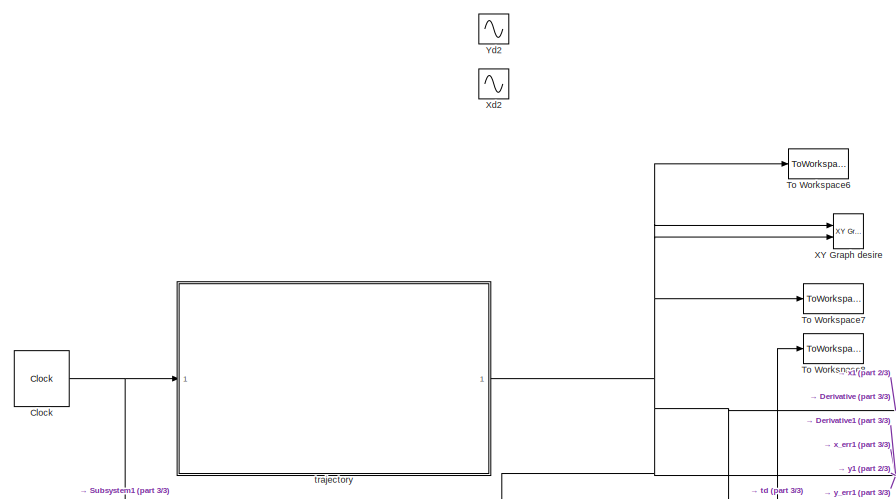
[diagram: root canvas - part 1/3, top left region]
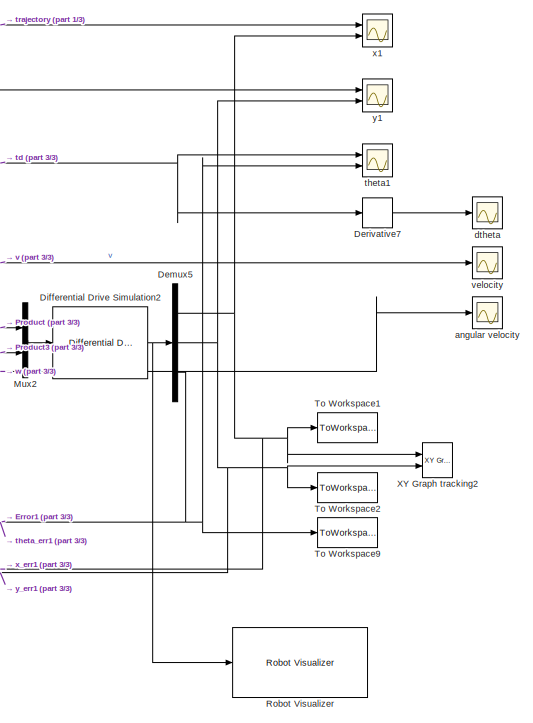
[diagram: root canvas - part 2/3, middle right region]
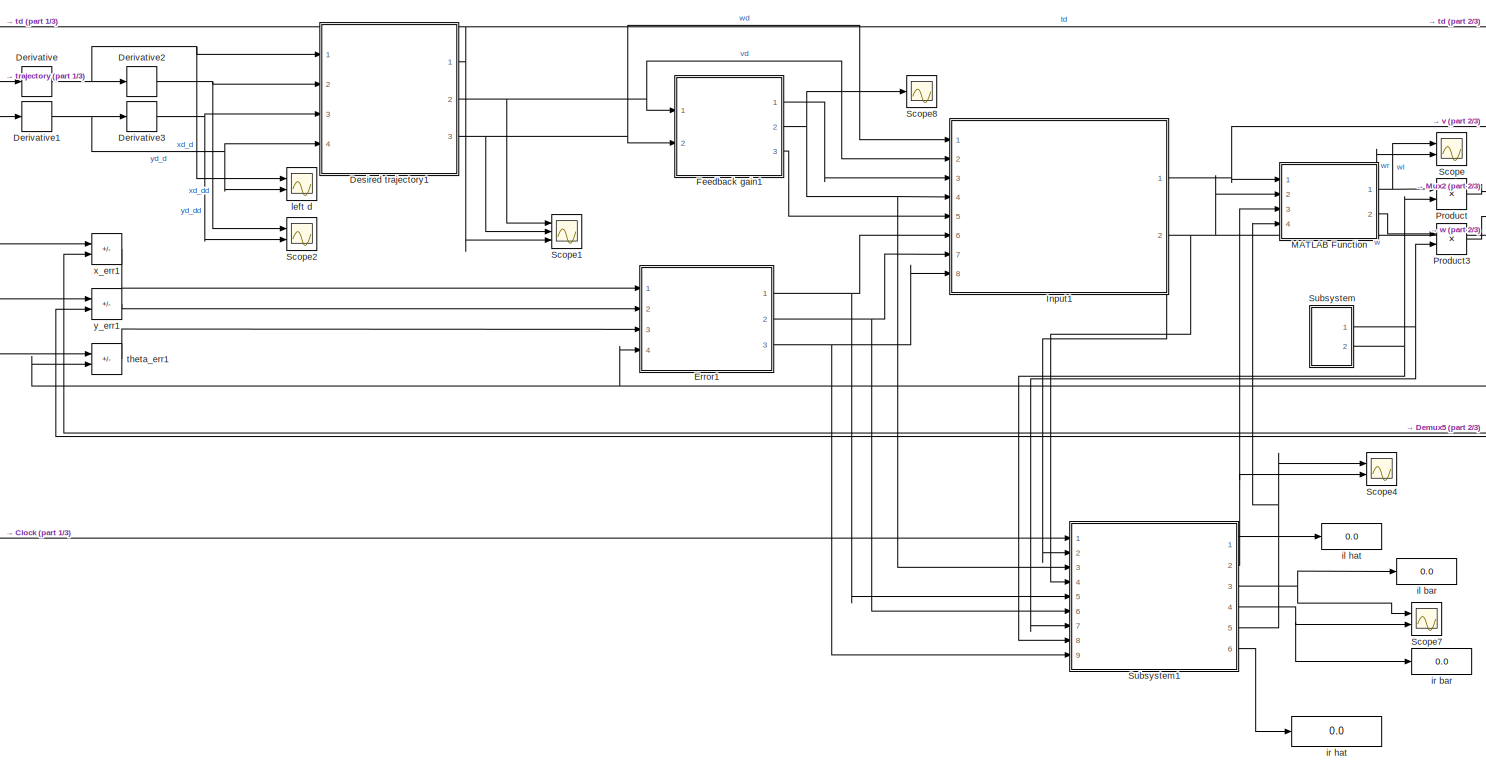
[diagram: root canvas - part 3/3, bottom center region]
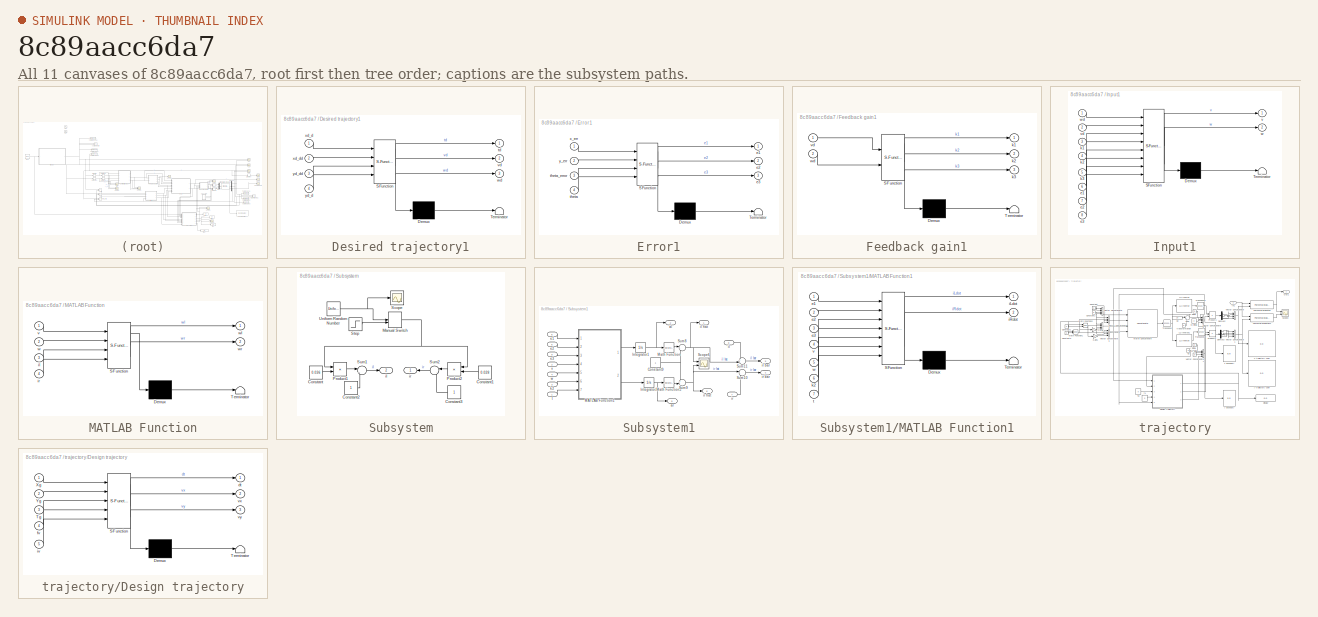
[diagram: thumbnail index - all 11 canvases of the model, root first then tree order]
MODEL slx_8c89aacc6da7
KIND model
CONFIG AbsTol = auto
CONFIG EnableMultiTasking = off
CONFIG FixedStep = 0.01
CONFIG MaxStep = auto
CONFIG MinStep = auto
CONFIG RelTol = 1e-3
CONFIG SampleTimeConstraint = Unconstrained
CONFIG SolverName = ode4
CONFIG StartTime = 0.0
CONFIG StopTime = 50
BLOCK [Clock] Clock
BLOCK [Demux] Demux5
  Outputs = 3
  Ports = [1, 3]
BLOCK [Derivative] Derivative
  CoefficientInTFapproximation = 0
BLOCK [Derivative] Derivative1
  CoefficientInTFapproximation = 0
BLOCK [Derivative] Derivative2
  CoefficientInTFapproximation = 0
BLOCK [Derivative] Derivative3
  CoefficientInTFapproximation = 0
BLOCK [Derivative] Derivative7
  CoefficientInTFapproximation = 0
BLOCK [SubSystem] Desired trajectory1
  ErrorFcn = Stateflow.Translate.translate
  PermitHierarchicalResolution = ExplicitOnly
  Ports = [4, 3]
  RequestExecContextInheritance = off
  SFBlockType = MATLAB Function
  TreatAsAtomicUnit = on
BLOCK [Demux] Desired trajectory1/ Demux 
  Outputs = 1
  Ports = [1, 1]
BLOCK [S-Function] Desired trajectory1/ SFunction 
  EnableBusSupport = on
  FunctionName = sf_sfun
  PortCounts = [4 4]
  Ports = [4, 4]
  SFcnIsStateOwnerBlock = off
  SFunctionDeploymentMode = off
  Tag = Stateflow S-Function 5
BLOCK [Terminator] Desired trajectory1/ Terminator 
BLOCK [Outport] Desired trajectory1/td
  VectorParamsAs1DForOutWhenUnconnected = off
BLOCK [Outport] Desired trajectory1/vd
  Port = 2
  VectorParamsAs1DForOutWhenUnconnected = off
BLOCK [Outport] Desired trajectory1/wd
  Port = 3
  VectorParamsAs1DForOutWhenUnconnected = off
BLOCK [Inport] Desired trajectory1/xd_d
BLOCK [Inport] Desired trajectory1/xd_dd
  Port = 2
BLOCK [Inport] Desired trajectory1/yd_d
  Port = 4
BLOCK [Inport] Desired trajectory1/yd_dd
  Port = 3
BLOCK [Reference] Differential Drive Simulation2  REF=mobileRoboticsLib/Kinematic Models/Differential Drive/Differential Drive Simulation
  Ports = [1, 1]
  SourceBlock = mobileRoboticsLib/Kinematic Models/Differential Drive/Differential Drive Simulation
  SourceProductName = Mobile Robotics Simulation Toolbox
  SourceType = Differential Drive Simulation
BLOCK [SubSystem] Error1
  ErrorFcn = Stateflow.Translate.translate
  PermitHierarchicalResolution = ExplicitOnly
  Ports = [4, 3]
  RequestExecContextInheritance = off
  SFBlockType = MATLAB Function
  TreatAsAtomicUnit = on
BLOCK [Demux] Error1/ Demux 
  Outputs = 1
  Ports = [1, 1]
BLOCK [S-Function] Error1/ SFunction 
  EnableBusSupport = on
  FunctionName = sf_sfun
  PortCounts = [4 4]
  Ports = [4, 4]
  SFcnIsStateOwnerBlock = off
  SFunctionDeploymentMode = off
  Tag = Stateflow S-Function 6
BLOCK [Terminator] Error1/ Terminator 
BLOCK [Outport] Error1/e1
  VectorParamsAs1DForOutWhenUnconnected = off
BLOCK [Outport] Error1/e2
  Port = 2
  VectorParamsAs1DForOutWhenUnconnected = off
BLOCK [Outport] Error1/e3
  Port = 3
  VectorParamsAs1DForOutWhenUnconnected = off
BLOCK [Inport] Error1/theta
  Port = 4
BLOCK [Inport] Error1/theta_error
  Port = 3
BLOCK [Inport] Error1/x_err
BLOCK [Inport] Error1/y_err
  Port = 2
BLOCK [SubSystem] Feedback gain1
  ErrorFcn = Stateflow.Translate.translate
  PermitHierarchicalResolution = ExplicitOnly
  Ports = [2, 3]
  RequestExecContextInheritance = off
  SFBlockType = MATLAB Function
  TreatAsAtomicUnit = on
BLOCK [Demux] Feedback gain1/ Demux 
  Outputs = 1
  Ports = [1, 1]
BLOCK [S-Function] Feedback gain1/ SFunction 
  EnableBusSupport = on
  FunctionName = sf_sfun
  PortCounts = [2 4]
  Ports = [2, 4]
  SFcnIsStateOwnerBlock = off
  SFunctionDeploymentMode = off
  Tag = Stateflow S-Function 7
BLOCK [Terminator] Feedback gain1/ Terminator 
BLOCK [Outport] Feedback gain1/k1
  VectorParamsAs1DForOutWhenUnconnected = off
BLOCK [Outport] Feedback gain1/k2
  Port = 2
  VectorParamsAs1DForOutWhenUnconnected = off
BLOCK [Outport] Feedback gain1/k3
  Port = 3
  VectorParamsAs1DForOutWhenUnconnected = off
BLOCK [Inport] Feedback gain1/vd
BLOCK [Inport] Feedback gain1/wd
  Port = 2
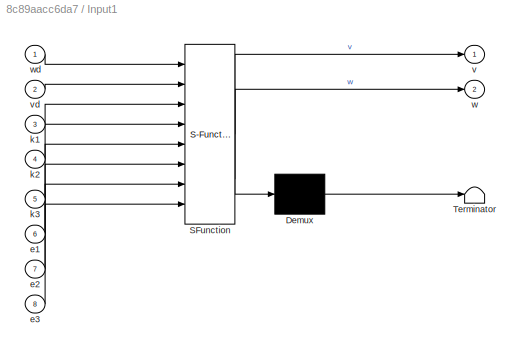
BLOCK [SubSystem] Input1
  ErrorFcn = Stateflow.Translate.translate
  PermitHierarchicalResolution = ExplicitOnly
  Ports = [8, 2]
  RequestExecContextInheritance = off
  SFBlockType = MATLAB Function
  TreatAsAtomicUnit = on
BLOCK [Demux] Input1/ Demux 
  Outputs = 1
  Ports = [1, 1]
BLOCK [S-Function] Input1/ SFunction 
  EnableBusSupport = on
  FunctionName = sf_sfun
  PortCounts = [8 3]
  Ports = [8, 3]
  SFcnIsStateOwnerBlock = off
  SFunctionDeploymentMode = off
  Tag = Stateflow S-Function 8
BLOCK [Terminator] Input1/ Terminator 
BLOCK [Inport] Input1/e1
  Port = 6
BLOCK [Inport] Input1/e2
  Port = 7
BLOCK [Inport] Input1/e3
  Port = 8
BLOCK [Inport] Input1/k1
  Port = 3
BLOCK [Inport] Input1/k2
  Port = 4
BLOCK [Inport] Input1/k3
  Port = 5
BLOCK [Outport] Input1/v
  VectorParamsAs1DForOutWhenUnconnected = off
BLOCK [Inport] Input1/vd
  Port = 2
BLOCK [Outport] Input1/w
  Port = 2
  VectorParamsAs1DForOutWhenUnconnected = off
BLOCK [Inport] Input1/wd
BLOCK [SubSystem] MATLAB Function
  ErrorFcn = Stateflow.Translate.translate
  PermitHierarchicalResolution = ExplicitOnly
  Ports = [4, 2]
  RequestExecContextInheritance = off
  SFBlockType = MATLAB Function
  TreatAsAtomicUnit = on
BLOCK [Demux] MATLAB Function/ Demux 
  Outputs = 1
  Ports = [1, 1]
BLOCK [S-Function] MATLAB Function/ SFunction 
  EnableBusSupport = on
  FunctionName = sf_sfun
  PortCounts = [4 3]
  Ports = [4, 3]
  SFcnIsStateOwnerBlock = off
  SFunctionDeploymentMode = off
  Tag = Stateflow S-Function 2
BLOCK [Terminator] MATLAB Function/ Terminator 
BLOCK [Inport] MATLAB Function/il
  Port = 3
BLOCK [Inport] MATLAB Function/ir
  Port = 4
BLOCK [Inport] MATLAB Function/v
BLOCK [Inport] MATLAB Function/w
  Port = 2
BLOCK [Outport] MATLAB Function/wl
BLOCK [Outport] MATLAB Function/wr
  Port = 2
BLOCK [Mux] Mux2
  DisplayOption = bar
  Inputs = 2
  Ports = [2, 1]
BLOCK [Product] Product
  Ports = [2, 1]
BLOCK [Product] Product3
  Ports = [2, 1]
BLOCK [Reference] Robot Visualizer  REF=mobileRoboticsLib/Environments/Robot Visualizer
  Ports = [1]
  SourceBlock = mobileRoboticsLib/Environments/Robot Visualizer
  SourceProductName = Mobile Robotics Simulation Toolbox
  SourceType = Visualizer2D
BLOCK [Scope] Scope
  Floating = off
  NumInputPorts = 2
  Ports = [2]
  ScopeSpecificationString = Simulink.scopes.TimeScopeBlockCfg('CurrentConfiguration', extmgr.ConfigurationSet(extmgr.Configuration('Core','General UI',true),extmgr.Configuration('Core','Source UI',true),extmgr.Configuration('Sources','WiredSimulink',true,'DataLoggingVariableName','ScopeData11'),extmgr.Configuration('Visuals','Time Domain',true,'SerializedDisplays',{struct('MinYLimReal','-2.21381','MaxYLimReal','6.12404','YLa...<+1367ch>
BLOCK [Scope] Scope1
  Floating = off
  NumInputPorts = 3
  Ports = [3]
  ScopeSpecificationString = Simulink.scopes.TimeScopeBlockCfg('CurrentConfiguration', extmgr.ConfigurationSet(extmgr.Configuration('Core','General UI',true,'FigureColor',[1 1 1]),extmgr.Configuration('Core','Source UI',true),extmgr.Configuration('Sources','WiredSimulink',true,'DataLoggingVariableName','ScopeData1'),extmgr.Configuration('Visuals','Time Domain',true,'SerializedDisplays',{struct('MinYLimReal','-0.00994','MaxYLi...<+3122ch>
BLOCK [Scope] Scope2
  Floating = off
  NumInputPorts = 2
  Ports = [2]
  ScopeSpecificationString = Simulink.scopes.TimeScopeBlockCfg('CurrentConfiguration', extmgr.ConfigurationSet(extmgr.Configuration('Core','General UI',true),extmgr.Configuration('Core','Source UI',true),extmgr.Configuration('Sources','WiredSimulink',true,'DataLoggingVariableName','ScopeData2'),extmgr.Configuration('Visuals','Time Domain',true,'SerializedDisplays',{struct('MinYLimReal','-0.00556','MaxYLimReal','0.00979','YLab...<+2049ch>
BLOCK [Scope] Scope4
  Floating = off
  NumInputPorts = 2
  Ports = [2]
  ScopeSpecificationString = Simulink.scopes.TimeScopeBlockCfg('CurrentConfiguration', extmgr.ConfigurationSet(extmgr.Configuration('Core','General UI',true),extmgr.Configuration('Core','Source UI',true),extmgr.Configuration('Sources','WiredSimulink',true,'DataLoggingVariableName','ScopeData4'),extmgr.Configuration('Visuals','Time Domain',true,'SerializedDisplays',{struct('MinYLimReal','-6.52994','MaxYLimReal','58.76945','YLa...<+1451ch>
BLOCK [Scope] Scope7
  Floating = off
  NumInputPorts = 2
  Ports = [2]
  ScopeSpecificationString = Simulink.scopes.TimeScopeBlockCfg('CurrentConfiguration', extmgr.ConfigurationSet(extmgr.Configuration('Core','General UI',true),extmgr.Configuration('Core','Source UI',true),extmgr.Configuration('Sources','WiredSimulink',true,'DataLoggingVariableName','ScopeData14'),extmgr.Configuration('Visuals','Time Domain',true,'SerializedDisplays',{struct('MinYLimReal','-0.01505','MaxYLimReal','0.07323','YLa...<+1422ch>
BLOCK [Scope] Scope8
  Floating = off
  NumInputPorts = 1
  Ports = [1]
  ScopeSpecificationString = Simulink.scopes.TimeScopeBlockCfg('CurrentConfiguration', extmgr.ConfigurationSet(extmgr.Configuration('Core','General UI',true),extmgr.Configuration('Core','Source UI',true),extmgr.Configuration('Sources','WiredSimulink',true,'DataLoggingVariableName','ScopeData15'),extmgr.Configuration('Visuals','Time Domain',true,'SerializedDisplays',{struct('MinYLimReal','-0.1392','MaxYLimReal','1.25282','YLab...<+1375ch>
BLOCK [SubSystem] Subsystem
  Ports = [0, 2]
  RequestExecContextInheritance = off
BLOCK [Constant] Subsystem/Constant
  Value = 0.036
BLOCK [Constant] Subsystem/Constant1
  Value = 0.028
BLOCK [Constant] Subsystem/Constant2
BLOCK [Constant] Subsystem/Constant3
BLOCK [ManualSwitch] Subsystem/Manual Switch
  CurrentSetting = 0
BLOCK [Product] Subsystem/Product1
  Ports = [2, 1]
BLOCK [Product] Subsystem/Product2
  Ports = [2, 1]
BLOCK [Scope] Subsystem/Scope
  Floating = off
  NumInputPorts = 1
  Ports = [1]
  ScopeSpecificationString = Simulink.scopes.TimeScopeBlockCfg('CurrentConfiguration', extmgr.ConfigurationSet(extmgr.Configuration('Core','General UI',true),extmgr.Configuration('Core','Source UI',true),extmgr.Configuration('Sources','WiredSimulink',true,'DataLoggingVariableName','ScopeData1'),extmgr.Configuration('Visuals','Time Domain',true,'SerializedDisplays',{struct('MinYLimReal','-1.24853','MaxYLimReal','1.24863','YLab...<+1380ch>
BLOCK [Step] Subsystem/Step
  SampleTime = 0
  Time = 20
BLOCK [Sum] Subsystem/Sum1
  Inputs = |-+
  Ports = [2, 1]
BLOCK [Sum] Subsystem/Sum2
  Inputs = |-+
  Ports = [2, 1]
BLOCK [UniformRandomNumber] Subsystem/Uniform Random Number
  SampleTime = 0.1
BLOCK [Outport] Subsystem/il
  Port = 2
BLOCK [Outport] Subsystem/ir
BLOCK [SubSystem] Subsystem1
  Ports = [9, 6]
  RequestExecContextInheritance = off
BLOCK [Constant] Subsystem1/Constant9
BLOCK [Integrator] Subsystem1/Integrator1
  Ports = [1, 1]
BLOCK [Integrator] Subsystem1/Integrator2
  Ports = [1, 1]
BLOCK [SubSystem] Subsystem1/MATLAB Function1
  ErrorFcn = Stateflow.Translate.translate
  PermitHierarchicalResolution = ExplicitOnly
  Ports = [7, 2]
  RequestExecContextInheritance = off
  SFBlockType = MATLAB Function
  TreatAsAtomicUnit = on
BLOCK [Demux] Subsystem1/MATLAB Function1/ Demux 
  Outputs = 1
  Ports = [1, 1]
BLOCK [S-Function] Subsystem1/MATLAB Function1/ SFunction 
  EnableBusSupport = on
  FunctionName = sf_sfun
  PortCounts = [7 3]
  Ports = [7, 3]
  SFcnIsStateOwnerBlock = off
  SFunctionDeploymentMode = off
  Tag = Stateflow S-Function 3
BLOCK [Terminator] Subsystem1/MATLAB Function1/ Terminator 
BLOCK [Inport] Subsystem1/MATLAB Function1/e1
BLOCK [Inport] Subsystem1/MATLAB Function1/e2
  Port = 2
BLOCK [Inport] Subsystem1/MATLAB Function1/e3
  Port = 3
BLOCK [Outport] Subsystem1/MATLAB Function1/iLdot
BLOCK [Outport] Subsystem1/MATLAB Function1/iRdot
  Port = 2
BLOCK [Inport] Subsystem1/MATLAB Function1/k2
  Port = 6
BLOCK [Inport] Subsystem1/MATLAB Function1/t
  Port = 7
BLOCK [Inport] Subsystem1/MATLAB Function1/v
  Port = 4
BLOCK [Inport] Subsystem1/MATLAB Function1/w
  Port = 5
BLOCK [Math] Subsystem1/Math Function
  Operator = reciprocal
  Ports = [1, 1]
BLOCK [Math] Subsystem1/Math Function3
  Operator = reciprocal
  Ports = [1, 1]
BLOCK [Scope] Subsystem1/Scope6
  Floating = off
  NumInputPorts = 2
  Ports = [2]
  ScopeSpecificationString = Simulink.scopes.TimeScopeBlockCfg('CurrentConfiguration', extmgr.ConfigurationSet(extmgr.Configuration('Core','General UI',true),extmgr.Configuration('Core','Source UI',true),extmgr.Configuration('Sources','WiredSimulink',true,'DataLoggingVariableName','ScopeData13'),extmgr.Configuration('Visuals','Time Domain',true,'SerializedDisplays',{struct('MinYLimReal','-1.31399','MaxYLimReal','3.40323','YLa...<+1421ch>
BLOCK [Sum] Subsystem1/Sum10
  Inputs = |-+
  Ports = [2, 1]
BLOCK [Sum] Subsystem1/Sum11
  Inputs = +-|
  Ports = [2, 1]
BLOCK [Sum] Subsystem1/Sum8
  Inputs = |-+
  Ports = [2, 1]
BLOCK [Sum] Subsystem1/Sum9
  Inputs = +-|
  Ports = [2, 1]
BLOCK [Outport] Subsystem1/al
  Port = 2
BLOCK [Outport] Subsystem1/ar
  Port = 5
BLOCK [Inport] Subsystem1/e1
  Port = 5
BLOCK [Inport] Subsystem1/e2
  Port = 6
BLOCK [Inport] Subsystem1/e3
  Port = 9
BLOCK [Inport] Subsystem1/il
  Port = 8
BLOCK [Outport] Subsystem1/il bar
  Port = 3
BLOCK [Outport] Subsystem1/il hat
BLOCK [Inport] Subsystem1/ir
  Port = 7
BLOCK [Outport] Subsystem1/ir bar
  Port = 4
BLOCK [Outport] Subsystem1/ir hat
  Port = 6
BLOCK [Inport] Subsystem1/k2
  Port = 3
BLOCK [Inport] Subsystem1/t
BLOCK [Inport] Subsystem1/v
  Port = 2
BLOCK [Inport] Subsystem1/w
  Port = 4
BLOCK [ToWorkspace] To Workspace1
  FixptAsFi = on
  MaxDataPoints = inf
  Ports = [1]
  SampleTime = -1
  Save2DSignal = 2-D array (concatenate along first dimension)
  VariableName = CT_xs
BLOCK [ToWorkspace] To Workspace2
  FixptAsFi = on
  MaxDataPoints = inf
  Ports = [1]
  SampleTime = -1
  Save2DSignal = 2-D array (concatenate along first dimension)
  VariableName = CT_ys
BLOCK [ToWorkspace] To Workspace6
  FixptAsFi = on
  MaxDataPoints = inf
  Ports = [1]
  SampleTime = -1
  Save2DSignal = 2-D array (concatenate along first dimension)
  VariableName = x_cmd
BLOCK [ToWorkspace] To Workspace7
  FixptAsFi = on
  MaxDataPoints = inf
  Ports = [1]
  SampleTime = -1
  Save2DSignal = 2-D array (concatenate along first dimension)
  VariableName = y_cmd
BLOCK [ToWorkspace] To Workspace8
  FixptAsFi = on
  MaxDataPoints = inf
  Ports = [1]
  SampleTime = -1
  Save2DSignal = 2-D array (concatenate along first dimension)
  VariableName = theta_cmd
BLOCK [ToWorkspace] To Workspace9
  FixptAsFi = on
  MaxDataPoints = inf
  Ports = [1]
  SampleTime = -1
  Save2DSignal = 2-D array (concatenate along first dimension)
  VariableName = CT_thetas
BLOCK [Reference] XY Graph desire  REF=simulink/Sinks/XY Graph
  Ports = [2]
  SourceBlock = simulink/Sinks/XY Graph
  SourceProductBaseCode = SL
  SourceType = XY scope.
BLOCK [Reference] XY Graph tracking2  REF=simulink/Sinks/XY Graph
  Ports = [2]
  SourceBlock = simulink/Sinks/XY Graph
  SourceProductBaseCode = SL
  SourceType = XY scope.
BLOCK [Sin] Xd2
  Amplitude = -1.6
  Ports = [1, 1]
  SampleTime = 0
  TimeSource = Use external signal
BLOCK [Sin] Yd2
  Amplitude = -1.6
  Bias = 1.6
  Phase = pi/2
  Ports = [1, 1]
  SampleTime = 0
  TimeSource = Use external signal
BLOCK [Scope] angular velocity
  Floating = off
  NumInputPorts = 1
  Ports = [1]
  ScopeSpecificationString = Simulink.scopes.TimeScopeBlockCfg('CurrentConfiguration', extmgr.ConfigurationSet(extmgr.Configuration('Core','General UI',true,'FigureColor',[1 1 1]),extmgr.Configuration('Core','Source UI',true),extmgr.Configuration('Sources','WiredSimulink',true,'DataLoggingVariableName','ScopeData3'),extmgr.Configuration('Visuals','Time Domain',true,'SerializedDisplays',{struct('MinYLimReal','-0.0369','MaxYLim...<+1650ch>
BLOCK [Scope] dtheta
  Floating = off
  NumInputPorts = 1
  Ports = [1]
  ScopeSpecificationString = Simulink.scopes.TimeScopeBlockCfg('CurrentConfiguration', extmgr.ConfigurationSet(extmgr.Configuration('Core','General UI',true,'FigureColor',[1 1 1]),extmgr.Configuration('Core','Source UI',true),extmgr.Configuration('Sources','WiredSimulink',true,'DataLoggingVariableName','ScopeData5'),extmgr.Configuration('Visuals','Time Domain',true,'SerializedDisplays',{struct('MinYLimReal','-0.16392','MaxYLi...<+1664ch>
BLOCK [Display] il bar
  Decimation = 1
  Ports = [1]
BLOCK [Display] il hat
  Decimation = 1
  Ports = [1]
BLOCK [Display] ir bar
  Decimation = 1
  Ports = [1]
BLOCK [Display] ir hat
  Decimation = 1
  Ports = [1]
BLOCK [Scope] left d
  Floating = off
  NumInputPorts = 2
  Ports = [2]
  ScopeSpecificationString = Simulink.scopes.TimeScopeBlockCfg('CurrentConfiguration', extmgr.ConfigurationSet(extmgr.Configuration('Core','General UI',true,'FigureColor',[1 1 1]),extmgr.Configuration('Core','Source UI',true),extmgr.Configuration('Sources','WiredSimulink',true,'DataLoggingVariableName','ScopeData6'),extmgr.Configuration('Visuals','Time Domain',true,'SerializedDisplays',{struct('MinYLimReal','-0.0083','MaxYLim...<+2321ch>
BLOCK [Scope] theta1
  Floating = off
  NumInputPorts = 2
  Ports = [2]
  ScopeSpecificationString = Simulink.scopes.TimeScopeBlockCfg('CurrentConfiguration', extmgr.ConfigurationSet(extmgr.Configuration('Core','General UI',true,'FigureColor',[1 1 1]),extmgr.Configuration('Core','Source UI',true),extmgr.Configuration('Sources','WiredSimulink',true,'DataLoggingVariableName','ScopeData7'),extmgr.Configuration('Visuals','Time Domain',true,'SerializedDisplays',{struct('MinYLimReal','-0.29452','MaxYLi...<+1660ch>
BLOCK [Sum] theta_err1
  IconShape = rectangular
  Inputs = +-
  Ports = [2, 1]
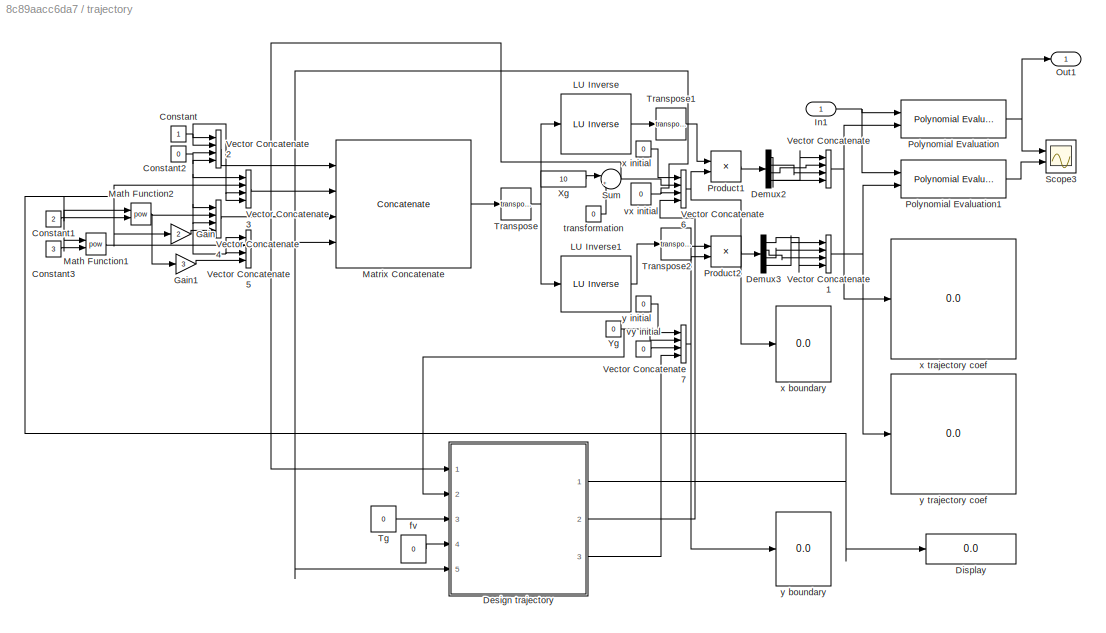
BLOCK [SubSystem] trajectory
  Ports = [1, 1]
  RequestExecContextInheritance = off
BLOCK [Reference] trajectory/ LU Inverse  REF=dspinverses/ LU Inverse
  Ports = [1, 1]
  SourceBlock = dspinverses/ LU Inverse
  SourceProductBaseCode = DS
  SourceType = LU Inverse
BLOCK [Reference] trajectory/ LU Inverse1  REF=dspinverses/ LU Inverse
  Ports = [1, 1]
  SourceBlock = dspinverses/ LU Inverse
  SourceProductBaseCode = DS
  SourceType = LU Inverse
BLOCK [Constant] trajectory/Constant
BLOCK [Constant] trajectory/Constant1
  Value = 2
BLOCK [Constant] trajectory/Constant2
  Value = 0
BLOCK [Constant] trajectory/Constant3
  Value = 3
BLOCK [Demux] trajectory/Demux2
  Ports = [1, 4]
BLOCK [Demux] trajectory/Demux3
  Ports = [1, 4]
BLOCK [SubSystem] trajectory/Design trajectory
  ErrorFcn = Stateflow.Translate.translate
  PermitHierarchicalResolution = ExplicitOnly
  Ports = [5, 3]
  RequestExecContextInheritance = off
  SFBlockType = MATLAB Function
  TreatAsAtomicUnit = on
BLOCK [Demux] trajectory/Design trajectory/ Demux 
  Outputs = 1
  Ports = [1, 1]
BLOCK [S-Function] trajectory/Design trajectory/ SFunction 
  EnableBusSupport = on
  FunctionName = sf_sfun
  PortCounts = [5 4]
  Ports = [5, 4]
  SFcnIsStateOwnerBlock = off
  SFunctionDeploymentMode = off
  Tag = Stateflow S-Function 1
BLOCK [Terminator] trajectory/Design trajectory/ Terminator 
BLOCK [Inport] trajectory/Design trajectory/Tg
  Port = 3
BLOCK [Inport] trajectory/Design trajectory/Xg
BLOCK [Inport] trajectory/Design trajectory/Yg
  Port = 2
BLOCK [Outport] trajectory/Design trajectory/dt
  VectorParamsAs1DForOutWhenUnconnected = off
BLOCK [Inport] trajectory/Design trajectory/fv
  Port = 4
BLOCK [Inport] trajectory/Design trajectory/iv
  Port = 5
BLOCK [Outport] trajectory/Design trajectory/vx
  Port = 2
  VectorParamsAs1DForOutWhenUnconnected = off
BLOCK [Outport] trajectory/Design trajectory/vy
  Port = 3
  VectorParamsAs1DForOutWhenUnconnected = off
BLOCK [Display] trajectory/Display
  Decimation = 1
  Ports = [1]
BLOCK [Gain] trajectory/Gain
  Gain = 2
BLOCK [Gain] trajectory/Gain1
  Gain = 3
BLOCK [Inport] trajectory/In1
BLOCK [Math] trajectory/Math Function1
  Operator = pow
  Ports = [2, 1]
BLOCK [Math] trajectory/Math Function2
  Operator = pow
  Ports = [2, 1]
BLOCK [Concatenate] trajectory/Matrix Concatenate
  ConcatenateDimension = 2
  Mode = Multidimensional array
  NumInputs = 4
  Ports = [4, 1]
BLOCK [Outport] trajectory/Out1
BLOCK [Reference] trajectory/Polynomial Evaluation  REF=dsppolyfun/Polynomial
Evaluation
  Ports = [2, 1]
  SourceBlock = dsppolyfun/Polynomial\nEvaluation
  SourceProductBaseCode = DS
  SourceType = Polynomial Evaluation
BLOCK [Reference] trajectory/Polynomial Evaluation1  REF=dsppolyfun/Polynomial
Evaluation
  Ports = [2, 1]
  SourceBlock = dsppolyfun/Polynomial\nEvaluation
  SourceProductBaseCode = DS
  SourceType = Polynomial Evaluation
BLOCK [Product] trajectory/Product1
  Multiplication = Matrix(*)
  Ports = [2, 1]
BLOCK [Product] trajectory/Product2
  Multiplication = Matrix(*)
  Ports = [2, 1]
BLOCK [Scope] trajectory/Scope3
  Floating = off
  NumInputPorts = 2
  Ports = [2]
  ScopeSpecificationString = Simulink.scopes.TimeScopeBlockCfg('CurrentConfiguration', extmgr.ConfigurationSet(extmgr.Configuration('Core','General UI',true),extmgr.Configuration('Core','Source UI',true),extmgr.Configuration('Sources','WiredSimulink',true,'DataLoggingVariableName','ScopeData10'),extmgr.Configuration('Visuals','Time Domain',true,'SerializedDisplays',{struct('MinYLimReal','-0.19531','MaxYLimReal','1.75781','YLa...<+1406ch>
BLOCK [Sum] trajectory/Sum
  Inputs = |++
  Ports = [2, 1]
BLOCK [Constant] trajectory/Tg
  Value = 0
BLOCK [Math] trajectory/Transpose
  Operator = transpose
  Ports = [1, 1]
BLOCK [Math] trajectory/Transpose1
  Operator = transpose
  Ports = [1, 1]
BLOCK [Math] trajectory/Transpose2
  Operator = transpose
  Ports = [1, 1]
BLOCK [Concatenate] trajectory/Vector Concatenate
  NameLocation = left
  NumInputs = 4
  Ports = [4, 1]
BLOCK [Concatenate] trajectory/Vector Concatenate1
  NumInputs = 4
  Ports = [4, 1]
BLOCK [Concatenate] trajectory/Vector Concatenate2
  NumInputs = 4
  Ports = [4, 1]
BLOCK [Concatenate] trajectory/Vector Concatenate3
  NumInputs = 4
  Ports = [4, 1]
BLOCK [Concatenate] trajectory/Vector Concatenate4
  NumInputs = 4
  Ports = [4, 1]
BLOCK [Concatenate] trajectory/Vector Concatenate5
  NumInputs = 4
  Ports = [4, 1]
BLOCK [Concatenate] trajectory/Vector Concatenate6
  NumInputs = 4
  Ports = [4, 1]
BLOCK [Concatenate] trajectory/Vector Concatenate7
  NumInputs = 4
  Ports = [4, 1]
BLOCK [Constant] trajectory/Xg 
  Value = 10
BLOCK [Constant] trajectory/Yg
  Value = 0
BLOCK [Constant] trajectory/fv
  Value = 0
BLOCK [Constant] trajectory/transformation
  Value = 0
BLOCK [Constant] trajectory/vx initial 
  Value = 0
BLOCK [Constant] trajectory/vy initial 
  Value = 0
BLOCK [Display] trajectory/x boundary 
  Decimation = 1
  Ports = [1]
BLOCK [Constant] trajectory/x initial 
  Value = 0
BLOCK [Display] trajectory/x trajectory coef
  Decimation = 1
  Ports = [1]
BLOCK [Display] trajectory/y boundary 
  Decimation = 1
  Ports = [1]
BLOCK [Constant] trajectory/y initial 
  Value = 0
BLOCK [Display] trajectory/y trajectory coef
  Decimation = 1
  Ports = [1]
BLOCK [Scope] velocity
  Floating = off
  NumInputPorts = 1
  Ports = [1]
  ScopeSpecificationString = Simulink.scopes.TimeScopeBlockCfg('CurrentConfiguration', extmgr.ConfigurationSet(extmgr.Configuration('Core','General UI',true,'FigureColor',[1 1 1]),extmgr.Configuration('Core','Source UI',true),extmgr.Configuration('Sources','WiredSimulink',true,'DataLoggingVariableName','ScopeData8'),extmgr.Configuration('Visuals','Time Domain',true,'SerializedDisplays',{struct('MinYLimReal','-0.00938','MaxYLi...<+1677ch>
BLOCK [Scope] x1
  Floating = off
  NumInputPorts = 2
  Ports = [2]
  ScopeSpecificationString = Simulink.scopes.TimeScopeBlockCfg('CurrentConfiguration', extmgr.ConfigurationSet(extmgr.Configuration('Core','General UI',true,'FigureColor',[1 1 1]),extmgr.Configuration('Core','Source UI',true),extmgr.Configuration('Sources','WiredSimulink',true,'DataLoggingVariableName','ScopeData9'),extmgr.Configuration('Visuals','Time Domain',true,'PlotType','Line','SerializedDisplays',{struct('MinYLimReal',...<+1693ch>
BLOCK [Sum] x_err1
  IconShape = rectangular
  Inputs = +-
  Ports = [2, 1]
BLOCK [Scope] y1
  Floating = off
  NumInputPorts = 2
  Ports = [2]
  ScopeSpecificationString = Simulink.scopes.TimeScopeBlockCfg('CurrentConfiguration', extmgr.ConfigurationSet(extmgr.Configuration('Core','General UI',true,'FigureColor',[1 1 1]),extmgr.Configuration('Core','Source UI',true),extmgr.Configuration('Sources','WiredSimulink',true),extmgr.Configuration('Visuals','Time Domain',true,'SerializedDisplays',{struct('MinYLimReal','-0.44618','MaxYLimReal','1.88745','YLabelReal','','MinYL...<+1622ch>
BLOCK [Sum] y_err1
  IconShape = rectangular
  Inputs = +-
  Ports = [2, 1]
NET Clock:1 -> Subsystem1:1, trajectory:1
NET Demux5:1 -> To Workspace1:1, XY Graph tracking2:1, x1:2, x_err1:2
NET Demux5:2 -> To Workspace2:1, XY Graph tracking2:2, y1:2, y_err1:2
NET Demux5:3 -> Error1:4, To Workspace9:1, theta1:2, theta_err1:2
NET Derivative1:1 -> Derivative3:1, Desired trajectory1:4, left d:2
NET Derivative2:1 -> Desired trajectory1:2, Scope2:1
NET Derivative3:1 -> Desired trajectory1:3, Scope2:2
LINE Derivative7:1 -> dtheta:1
NET Derivative:1 -> Derivative2:1, Desired trajectory1:1, left d:1
NET Desired trajectory1:1 -> Derivative7:1, Scope1:3, To Workspace8:1, theta1:1, theta_err1:1
NET Desired trajectory1:2 -> Feedback gain1:1, Input1:2, Scope1:1
NET Desired trajectory1:3 -> Feedback gain1:2, Input1:1, Scope1:2
NET Differential Drive Simulation2:1 -> Demux5:1, Robot Visualizer:1
NET Error1:1 -> Input1:6, Subsystem1:5
NET Error1:2 -> Input1:7, Subsystem1:6
NET Error1:3 -> Input1:8, Subsystem1:9
LINE Feedback gain1:1 -> Input1:3
NET Feedback gain1:2 -> Input1:4, Scope8:1, Subsystem1:3
LINE Feedback gain1:3 -> Input1:5
NET Input1:1 -> MATLAB Function:1, Subsystem1:2, velocity:1
NET Input1:2 -> MATLAB Function:2, Subsystem1:4, angular velocity:1
NET MATLAB Function:1 -> Product:1, Scope:1
NET MATLAB Function:2 -> Product3:1, Scope:2
LINE Mux2:1 -> Differential Drive Simulation2:1
LINE Product3:1 -> Mux2:2
LINE Product:1 -> Mux2:1
LINE Subsystem/Constant1:1 -> Subsystem/Product2:2
LINE Subsystem/Constant2:1 -> Subsystem/Sum1:2
LINE Subsystem/Constant3:1 -> Subsystem/Sum2:2
LINE Subsystem/Constant:1 -> Subsystem/Product1:2
NET Subsystem/Manual Switch:1 -> Subsystem/Product1:1, Subsystem/Product2:1
LINE Subsystem/Product1:1 -> Subsystem/Sum1:1
LINE Subsystem/Product2:1 -> Subsystem/Sum2:1
LINE Subsystem/Step:1 -> Subsystem/Manual Switch:2
LINE Subsystem/Sum1:1 -> Subsystem/il:1
LINE Subsystem/Sum2:1 -> Subsystem/ir:1
NET Subsystem/Uniform Random Number:1 -> Subsystem/Manual Switch:1, Subsystem/Scope:1
NET Subsystem1/Constant9:1 -> Subsystem1/Sum8:2, Subsystem1/Sum9:1
NET Subsystem1/Integrator1:1 -> Subsystem1/Math Function:1, Subsystem1/al:1
NET Subsystem1/Integrator2:1 -> Subsystem1/Math Function3:1, Subsystem1/ar:1
LINE Subsystem1/MATLAB Function1:1 -> Subsystem1/Integrator1:1
LINE Subsystem1/MATLAB Function1:2 -> Subsystem1/Integrator2:1
LINE Subsystem1/Math Function3:1 -> Subsystem1/Sum9:2
LINE Subsystem1/Math Function:1 -> Subsystem1/Sum8:1
LINE Subsystem1/Sum10:1 -> Subsystem1/ir bar:1
LINE Subsystem1/Sum11:1 -> Subsystem1/il bar:1
NET Subsystem1/Sum8:1 -> Subsystem1/Scope6:1, Subsystem1/Sum11:2, Subsystem1/il hat:1
NET Subsystem1/Sum9:1 -> Subsystem1/Scope6:2, Subsystem1/Sum10:1, Subsystem1/ir hat:1
LINE Subsystem1/e1:1 -> Subsystem1/MATLAB Function1:1
LINE Subsystem1/e2:1 -> Subsystem1/MATLAB Function1:2
LINE Subsystem1/e3:1 -> Subsystem1/MATLAB Function1:3
LINE Subsystem1/il:1 -> Subsystem1/Sum11:1
LINE Subsystem1/ir:1 -> Subsystem1/Sum10:2
LINE Subsystem1/k2:1 -> Subsystem1/MATLAB Function1:6
LINE Subsystem1/t:1 -> Subsystem1/MATLAB Function1:7
LINE Subsystem1/v:1 -> Subsystem1/MATLAB Function1:4
LINE Subsystem1/w:1 -> Subsystem1/MATLAB Function1:5
LINE Subsystem1:1 -> il hat:1
NET Subsystem1:2 -> MATLAB Function:3, Scope4:2
NET Subsystem1:3 -> Scope7:1, il bar:1
NET Subsystem1:4 -> Scope7:2, ir bar:1
NET Subsystem1:5 -> MATLAB Function:4, Scope4:1
LINE Subsystem1:6 -> ir hat:1
NET Subsystem:1 -> Product3:2, Subsystem1:7
NET Subsystem:2 -> Product:2, Subsystem1:8
LINE theta_err1:1 -> Error1:3
LINE trajectory/ LU Inverse1:1 -> trajectory/Transpose2:1
LINE trajectory/ LU Inverse:1 -> trajectory/Transpose1:1
LINE trajectory/Constant1:1 -> trajectory/Math Function2:2
NET trajectory/Constant2:1 -> trajectory/Vector Concatenate2:3, trajectory/Vector Concatenate2:4, trajectory/Vector Concatenate3:1, trajectory/Vector Concatenate4:1, trajectory/Vector Concatenate4:3, trajectory/Vector Concatenate5:1, trajectory/Vector Concatenate5:3
LINE trajectory/Constant3:1 -> trajectory/Math Function1:2
NET trajectory/Constant:1 -> trajectory/Vector Concatenate2:1, trajectory/Vector Concatenate2:2, trajectory/Vector Concatenate3:3, trajectory/Vector Concatenate3:4
LINE trajectory/Demux2:1 -> trajectory/Vector Concatenate:4
LINE trajectory/Demux2:2 -> trajectory/Vector Concatenate:3
LINE trajectory/Demux2:3 -> trajectory/Vector Concatenate:2
LINE trajectory/Demux2:4 -> trajectory/Vector Concatenate:1
LINE trajectory/Demux3:1 -> trajectory/Vector Concatenate1:4
LINE trajectory/Demux3:2 -> trajectory/Vector Concatenate1:3
LINE trajectory/Demux3:3 -> trajectory/Vector Concatenate1:2
LINE trajectory/Demux3:4 -> trajectory/Vector Concatenate1:1
NET trajectory/Design trajectory:1 -> trajectory/Display:1, trajectory/Gain:1, trajectory/Math Function1:1, trajectory/Math Function2:1, trajectory/Vector Concatenate3:2
LINE trajectory/Design trajectory:2 -> trajectory/Vector Concatenate6:4
LINE trajectory/Design trajectory:3 -> trajectory/Vector Concatenate7:4
LINE trajectory/Gain1:1 -> trajectory/Vector Concatenate5:4
LINE trajectory/Gain:1 -> trajectory/Vector Concatenate4:4
NET trajectory/In1:1 -> trajectory/Polynomial Evaluation1:1, trajectory/Polynomial Evaluation:1
LINE trajectory/Math Function1:1 -> trajectory/Vector Concatenate5:2
NET trajectory/Math Function2:1 -> trajectory/Gain1:1, trajectory/Vector Concatenate4:2
LINE trajectory/Matrix Concatenate:1 -> trajectory/Transpose:1
LINE trajectory/Polynomial Evaluation1:1 -> trajectory/Scope3:2
NET trajectory/Polynomial Evaluation:1 -> trajectory/Out1:1, trajectory/Scope3:1
LINE trajectory/Product1:1 -> trajectory/Demux2:1
LINE trajectory/Product2:1 -> trajectory/Demux3:1
NET trajectory/Sum:1 -> trajectory/Design trajectory:1, trajectory/Vector Concatenate6:2
LINE trajectory/Tg:1 -> trajectory/Design trajectory:3
LINE trajectory/Transpose1:1 -> trajectory/Product1:1
LINE trajectory/Transpose2:1 -> trajectory/Product2:1
NET trajectory/Transpose:1 -> trajectory/ LU Inverse1:1, trajectory/ LU Inverse:1
NET trajectory/Vector Concatenate1:1 -> trajectory/Polynomial Evaluation1:2, trajectory/y trajectory coef:1
LINE trajectory/Vector Concatenate2:1 -> trajectory/Matrix Concatenate:1
LINE trajectory/Vector Concatenate3:1 -> trajectory/Matrix Concatenate:2
LINE trajectory/Vector Concatenate4:1 -> trajectory/Matrix Concatenate:3
LINE trajectory/Vector Concatenate5:1 -> trajectory/Matrix Concatenate:4
NET trajectory/Vector Concatenate6:1 -> trajectory/Product1:2, trajectory/x boundary :1
NET trajectory/Vector Concatenate7:1 -> trajectory/Product2:2, trajectory/y boundary :1
NET trajectory/Vector Concatenate:1 -> trajectory/Polynomial Evaluation:2, trajectory/x trajectory coef:1
LINE trajectory/Xg :1 -> trajectory/Sum:1
NET trajectory/Yg:1 -> trajectory/Design trajectory:2, trajectory/Vector Concatenate7:2
LINE trajectory/fv:1 -> trajectory/Design trajectory:4
LINE trajectory/transformation:1 -> trajectory/Sum:2
NET trajectory/vx initial :1 -> trajectory/Design trajectory:5, trajectory/Vector Concatenate6:3
LINE trajectory/vy initial :1 -> trajectory/Vector Concatenate7:3
LINE trajectory/x initial :1 -> trajectory/Vector Concatenate6:1
LINE trajectory/y initial :1 -> trajectory/Vector Concatenate7:1
NET trajectory:1 -> Derivative1:1, Derivative:1, To Workspace6:1, To Workspace7:1, XY Graph desire:1, XY Graph desire:2, x1:1, x_err1:1, y1:1, y_err1:1
LINE x_err1:1 -> Error1:1
LINE y_err1:1 -> Error1:2
note: NET lines group one-source signal fan-out (src -> all destinations, sorted); 1:1 wires keep LINE
CHART trajectory/Design trajectory states=1 transitions=1
  STATE_LABEL 'eML_blk_kernel()'
  STATE_LABEL 'SCRIPT:\nfunction [dt,vx,vy] = cmd_generation(Xg,Yg,Tg,fv,iv)\n\n    distance = sqrt(Xg*Xg + Yg*Yg);\n%     distance = 1.6*Xg;\n    vx = sqrt((fv*fv)/(1+tan(Tg)*tan(Tg)));\n    vy = vx*tan(Tg);\n    dt = distance/0.05;\nend\n'
CHART MATLAB Function states=1 transitions=1
  STATE_LABEL 'eML_blk_kernel()'
  STATE_LABEL 'SCRIPT:\nfunction [wl,wr] = IK(v,w,il,ir)\n    %parameters\n    r=0.075;\n    b=0.15;\n    %inverse kinematics\n%     wl = v/(r*il) - w*b/(r*il);\n%     wr = v/(r*ir) + w*b/(r*ir);\n    wl = v*il/(r) - w*b*il/(r);\n    wr = v*ir/(r) + w*b*ir/(r);\nend'
CHART Subsystem1/MATLAB Function1 states=1 transitions=1
  STATE_LABEL 'eML_blk_kernel()'
  STATE_LABEL 'SCRIPT:\nfunction [iLdot,iRdot]  = observer(e1,e2,e3,v,w,k2,t)\n\n    %parameters\n    r=0.075;\n    b=0.15;\n    p1=20;\n    p2=100;\n    \n    if (t<0.01)\n    iLdot=0.1;\n    iRdot=0.1;\n    else\n    iLdot=p1*((e2/b + 1/2)*e1*v - (e2/2 + b/4)*e1*w - sin(e3)/k2*(v/b - w/2));\n    iRdot=p2*(-(e2/b - 1/2)*e1*v - (e2/2 - b/4)*e1*w + sin(e3)/k2*(v/b + w/2));\n\n    end\n\n\n\nend'
CHART Desired trajectory1 states=1 transitions=1
  STATE_LABEL 'eML_blk_kernel()'
  STATE_LABEL 'SCRIPT:\nfunction [td,vd,wd] = cmd_generation(xd_d,xd_dd,yd_dd,yd_d)\n%    if atan2(yd_d,xd_d)<0\n%        td=atan2(yd_d,xd_d)+2*pi;\n%    else\n        td=atan2(yd_d,xd_d);\n%    end\n    vd = sqrt(xd_d^2+yd_d^2);\n    if(xd_d^2+yd_d^2==0)\n        wd=0;\n    else\n        wd=(yd_dd*xd_d-xd_dd*yd_d)/(xd_d^2+yd_d^2);\n    end\nend\n'
CHART Error1 states=1 transitions=1
  STATE_LABEL 'eML_blk_kernel()'
  STATE_LABEL 'SCRIPT:\nfunction [e1,e2,e3] = error(x_err,y_err,theta_error,theta)\n    e=[cos(theta) sin(theta) 0;-sin(theta) cos(theta) 0;0 0 1]*[x_err;y_err;theta_error];\n    e1=e(1);\n    e2=e(2);\n    e3=e(3);\nend\n'
CHART Feedback gain1 states=1 transitions=1
  STATE_LABEL 'eML_blk_kernel()'
  STATE_LABEL 'SCRIPT:\nfunction [k1,k2,k3] = K(vd,wd)\n    epsilon=1;\n    b=14;\n    \n    k1=2*epsilon*sqrt(wd^2+b*vd^2);\n    k3=k1;\n    k2=b*abs(vd);\nend\n'
CHART Input1 states=1 transitions=1
  STATE_LABEL 'eML_blk_kernel()'
  STATE_LABEL 'SCRIPT:\nfunction [v,w] = fcn(wd,vd,k1,k2,k3,e1,e2,e3)\n    v=zeros(1);\n    w=zeros(1);\n    vmax=0.15;\n    wmax=0.45;\n    vc=vd*cos(e3)+k1*e1;\n    wc=wd+k2*sign(vd)*e2+k3*e3;\n%     wc=wd+k2*(vd)*e2+k3*sin(e3);\n\n    sigma=max([abs(vc/vmax),abs(wc/wmax),1]);\n    if(sigma==1)\n        v=vc;\n        w=wc;\n    elseif(sigma==vc/vmax)\n        v=sign(vc)*vmax;\n        w=wc/sigma;\n    else\n        v=vc/sigma;...<+39ch>'
CHART  states=0 transitions=0
CHART  states=0 transitions=0
CHART  states=0 transitions=0
CHART  states=0 transitions=0
CHART  states=0 transitions=0
CHART  states=0 transitions=0
CHART  states=0 transitions=0
